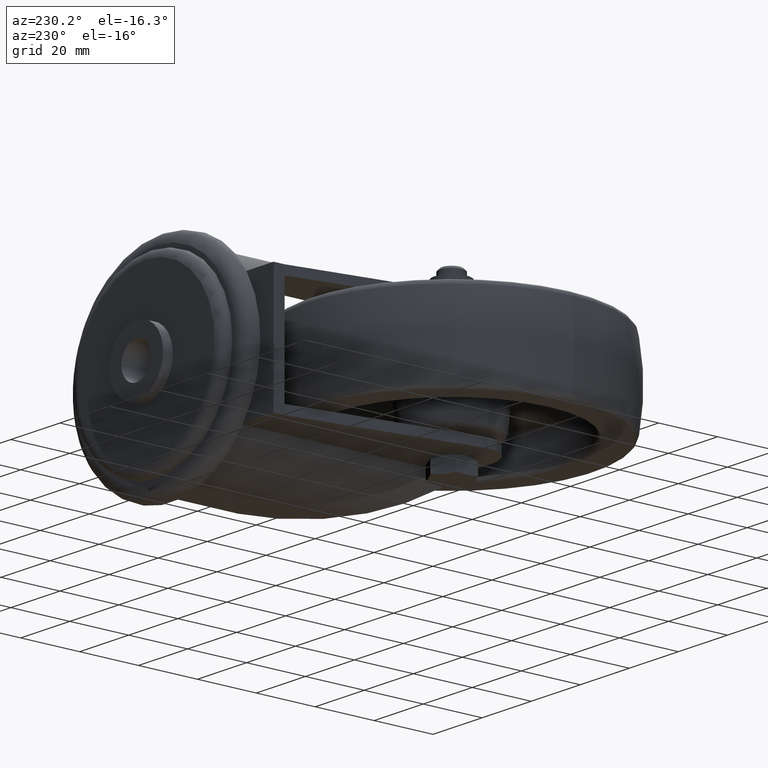
[diagram: clean part render]
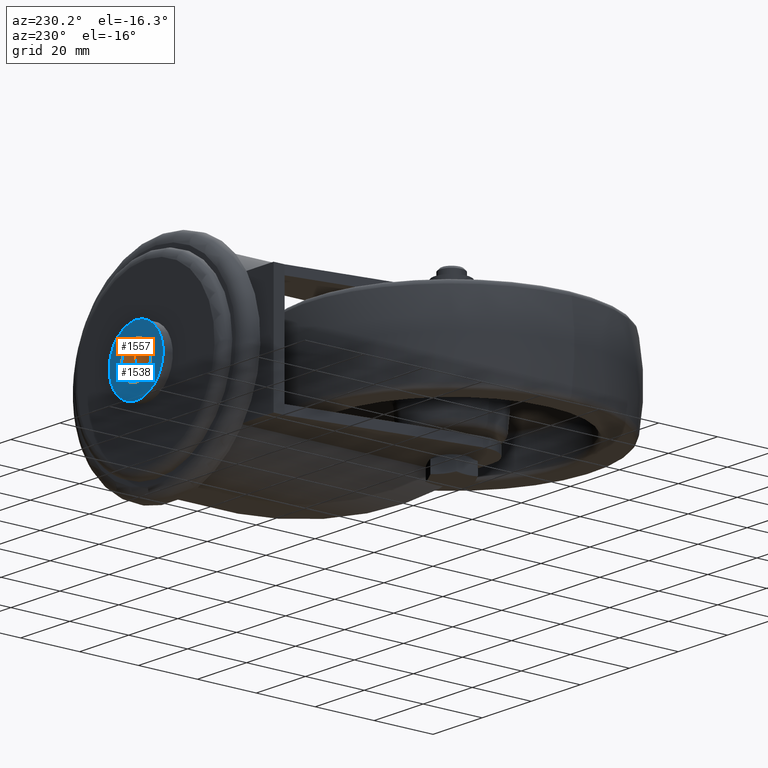
[diagram: same view with the hole feature highlighted: cylindrical wall and planar end face, labeled with their STEP entity ids]
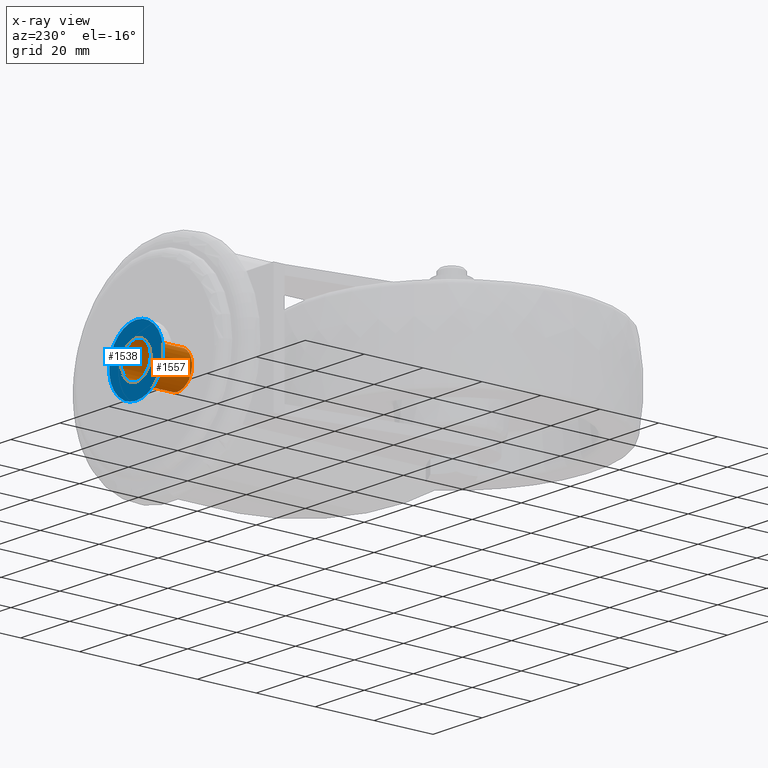
[diagram: x-ray of the same camera — body ghosted, the hole faces saturated]
A machine part, auxiliary view. The highlighted faces form one hole feature of diameter 12 mm: the cylindrical wall (entity #1557, orange) and its adjacent planar end face (entity #1538, blue) — they share a circular edge in the B-rep.
The next image is the same camera in x-ray (body ghosted, the hole faces saturated) — the bore reads through the body.
Wall:
#246=FACE_OUTER_BOUND('',#361,.T.);
#361=EDGE_LOOP('',(#1200,#1201,#1202,#1203));
#461=CIRCLE('',#1775,6.);
#473=CIRCLE('',#1800,6.);
#595=LINE('',#2656,#659);
#659=VECTOR('',#2137,6.);
#722=VERTEX_POINT('',#2599);
#732=VERTEX_POINT('',#2640);
#875=EDGE_CURVE('',#722,#722,#461,.T.);
#893=EDGE_CURVE('',#732,#732,#473,.F.);
#900=EDGE_CURVE('',#722,#732,#595,.T.);
#1200=ORIENTED_EDGE('',*,*,#875,.F.);
#1201=ORIENTED_EDGE('',*,*,#900,.T.);
#1202=ORIENTED_EDGE('',*,*,#893,.F.);
#1203=ORIENTED_EDGE('',*,*,#900,.F.);
#1518=CYLINDRICAL_SURFACE('',#1808,6.);
#1557=ADVANCED_FACE('',(#246),#1518,.F.);
#1775=AXIS2_PLACEMENT_3D('',#2600,#2059,#2060);
#1800=AXIS2_PLACEMENT_3D('',#2641,#2115,#2116);
#1808=AXIS2_PLACEMENT_3D('',#2655,#2135,#2136);
#2059=DIRECTION('center_axis',(0.,-1.,0.));
#2060=DIRECTION('ref_axis',(0.,0.,-1.));
#2115=DIRECTION('center_axis',(0.,-1.,0.));
#2116=DIRECTION('ref_axis',(0.,0.,-1.));
#2135=DIRECTION('center_axis',(0.,-1.,0.));
#2136=DIRECTION('ref_axis',(0.,0.,-1.));
#2137=DIRECTION('',(0.,-1.,0.));
#2599=CARTESIAN_POINT('',(35.,78.,6.));
#2600=CARTESIAN_POINT('Origin',(35.,78.,0.));
#2640=CARTESIAN_POINT('',(35.,64.,6.));
#2641=CARTESIAN_POINT('Origin',(35.,64.,0.));
#2655=CARTESIAN_POINT('Origin',(35.,58.,0.));
#2656=CARTESIAN_POINT('',(35.,58.,6.));
End face:
#149=FACE_BOUND('',#334,.T.);
#174=PLANE('',#1773);
#227=FACE_OUTER_BOUND('',#333,.T.);
#333=EDGE_LOOP('',(#1114));
#334=EDGE_LOOP('',(#1115));
#460=CIRCLE('',#1774,11.);
#461=CIRCLE('',#1775,6.);
#721=VERTEX_POINT('',#2597);
#722=VERTEX_POINT('',#2599);
#874=EDGE_CURVE('',#721,#721,#460,.T.);
#875=EDGE_CURVE('',#722,#722,#461,.T.);
#1114=ORIENTED_EDGE('',*,*,#874,.F.);
#1115=ORIENTED_EDGE('',*,*,#875,.T.);
#1538=ADVANCED_FACE('',(#227,#149),#174,.F.);
#1773=AXIS2_PLACEMENT_3D('',#2596,#2055,#2056);
#1774=AXIS2_PLACEMENT_3D('',#2598,#2057,#2058);
#1775=AXIS2_PLACEMENT_3D('',#2600,#2059,#2060);
#2055=DIRECTION('center_axis',(0.,-1.,0.));
#2056=DIRECTION('ref_axis',(0.,0.,-1.));
#2057=DIRECTION('center_axis',(0.,-1.,0.));
#2058=DIRECTION('ref_axis',(0.,0.,-1.));
#2059=DIRECTION('center_axis',(0.,-1.,0.));
#2060=DIRECTION('ref_axis',(0.,0.,-1.));
#2596=CARTESIAN_POINT('Origin',(35.,78.,0.));
#2597=CARTESIAN_POINT('',(35.,78.,11.));
#2598=CARTESIAN_POINT('Origin',(35.,78.,0.));
#2599=CARTESIAN_POINT('',(35.,78.,6.));
#2600=CARTESIAN_POINT('Origin',(35.,78.,0.));